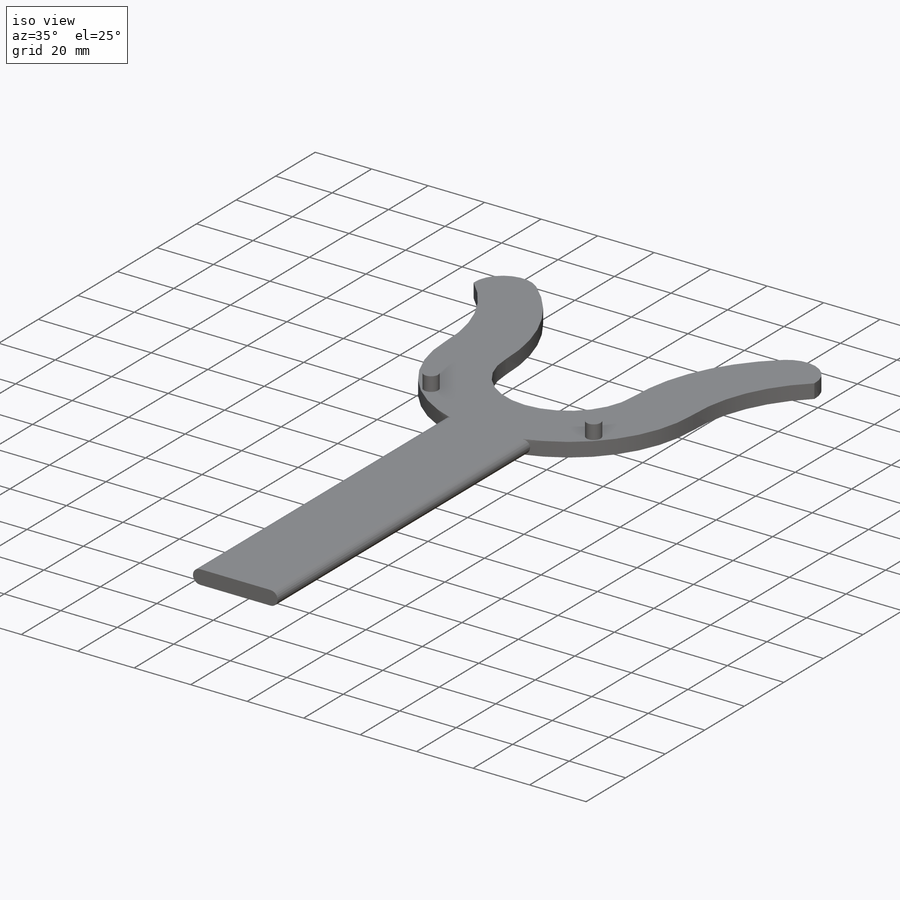
[diagram: iso view]
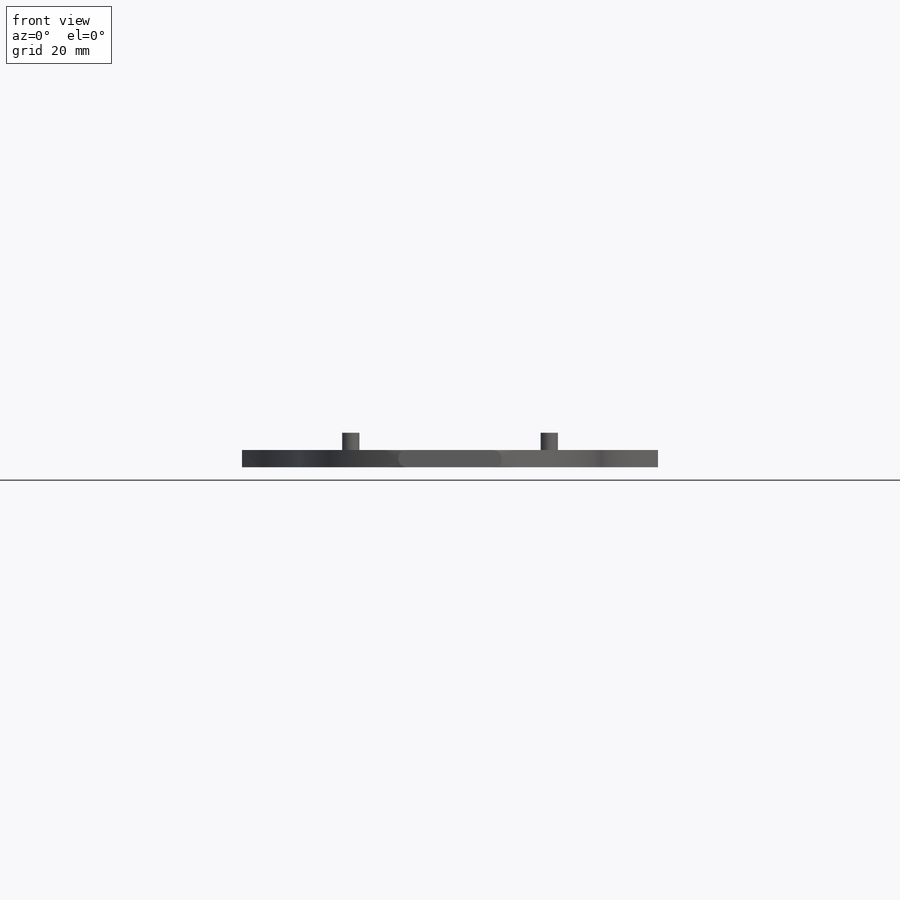
[diagram: front view]
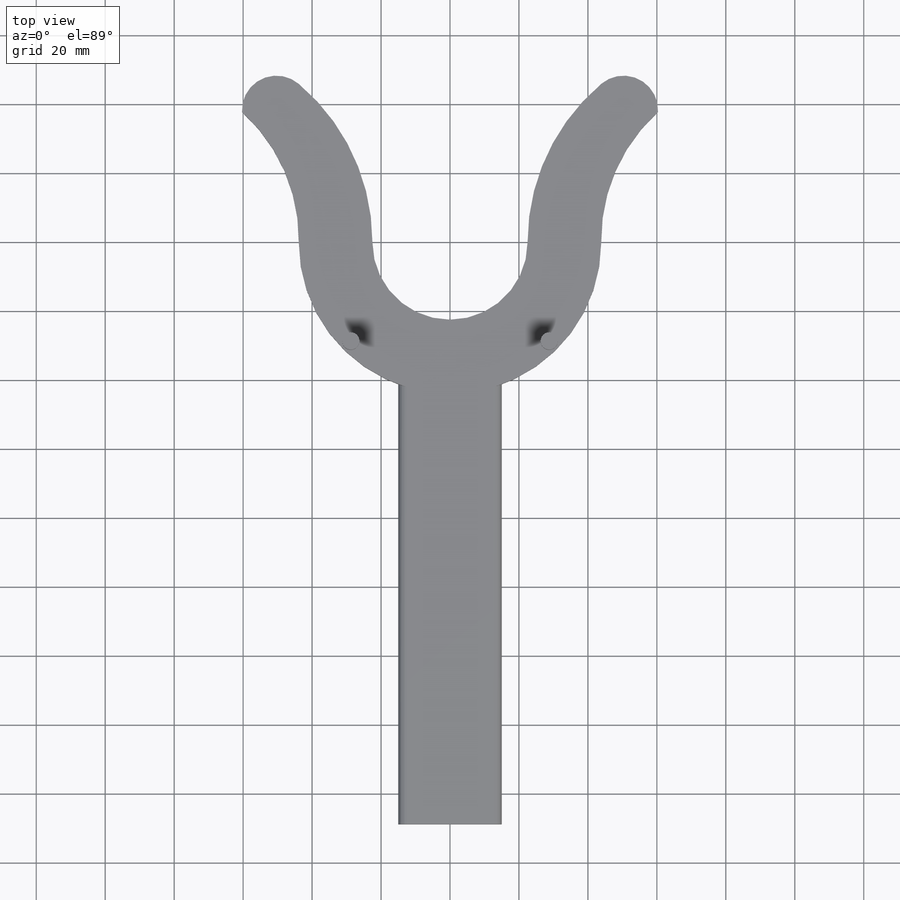
[diagram: top view]
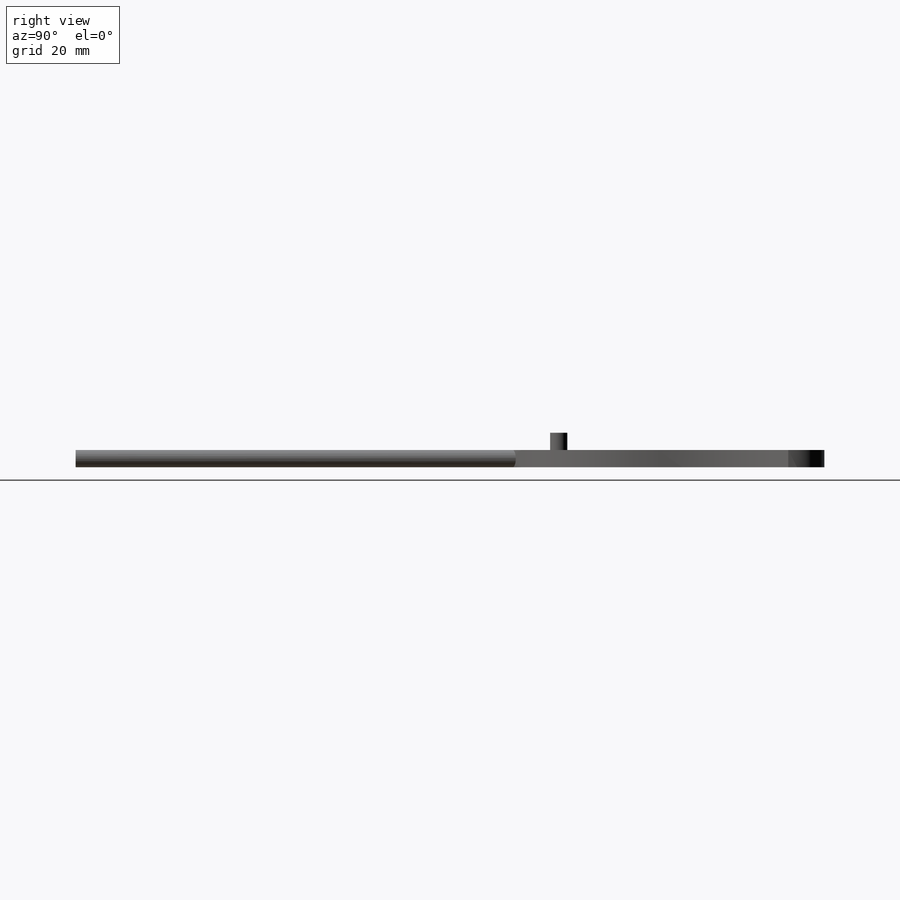
[diagram: right view]
SOLIDWORKS PART (.sldprt)
format: sldprt  version: not decoded by parser v0  size: 179,712 bytes
history: native  units: mm
features: sketch x3, extrude x3, material x1, plane x1 (+13 scaffold rows collapsed)
feature tree (21):
  scaffold x13  (default folders/planes/origin — collapsed)
  material  "Material <not specified>"
  sketch  "Sketch1"  dims[c1.D1=45.0mm c1.D2=60.0mm c1.D3=10.0mm c1.D5=10.0mm c1.D6=50.0mm c1.D8=~43.868303mm c1.D9=76.2mm c1.D11=~7.118634mm c1.D4=~8.160757mm c2.D5=~16.419699mm c2.D7=~16.456911mm c2.D9=~43.868303mm c2.D10=~57.776613mm c3.D10=45.0deg]
  extrude  "Boss-Extrude1"  Depth=5mm
  sketch  "Sketch2"  dims[c1.D1=22.5mm c1.D2=76.4mm c1.D3=5.0mm c1.D4=5.0mm c2.D1=~43.868303mm c3.D1=45.0deg]
  extrude  "Boss-Extrude2"  Depth=5mm
  plane  "Plane1"
  sketch  "Sketch4"  dims[D1=25.0mm]
  extrude  "Boss-Extrude3"  Depth=125mm
decode coverage: 6 of 6 modeling features carry decoded parameters
note: ~ marks probable driven/reference dimensions
note: suppression state not decoded; provenance and decode notes live in map.json
